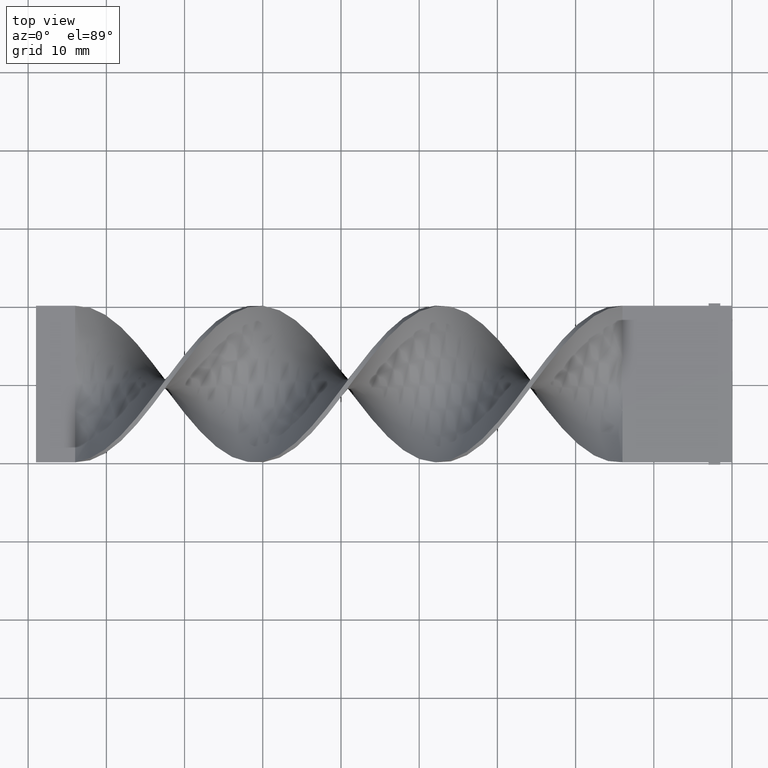
[diagram: clean part render]
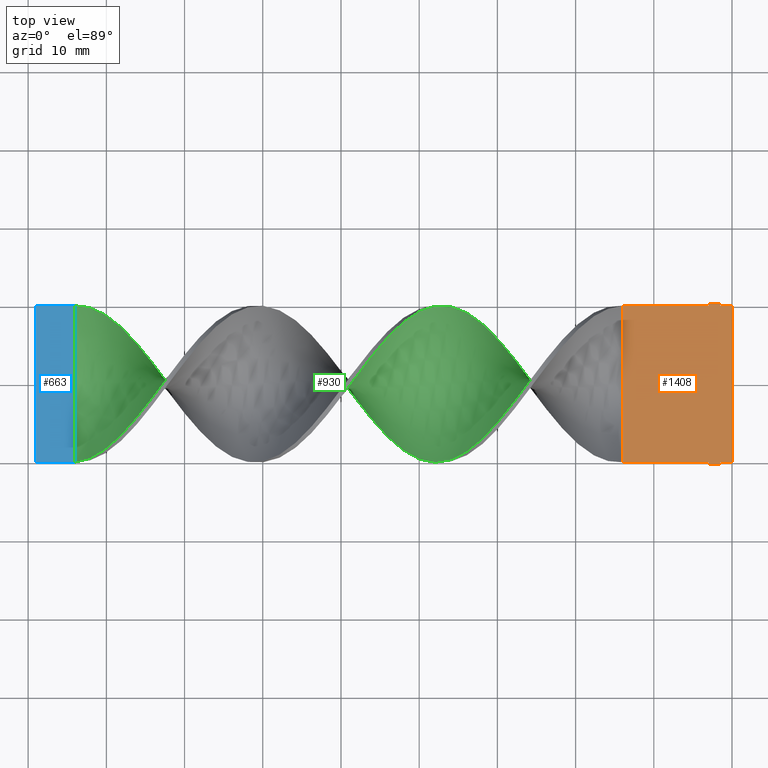
[diagram: same view with three faces highlighted in distinct colors, each labeled with its STEP entity id]
A machine part, top view with three faces highlighted in distinct colors.
Their STEP definitions:

[orange] entity #1408 — the highlighted planar face has unit normal (0, 0, 1).
#7 = EDGE_CURVE ( 'NONE', #125, #996, #1470, .T. ) ;
#10 = ORIENTED_EDGE ( 'NONE', *, *, #1263, .T. ) ;
#12 = DIRECTION ( 'NONE',  ( 0.000000000000000000, 0.000000000000000000, 1.000000000000000000 ) ) ;
#35 = LINE ( 'NONE', #1271, #46 ) ;
#46 = VECTOR ( 'NONE', #1280, 1000.000000000000000 ) ;
#49 = LINE ( 'NONE', #709, #1405 ) ;
#75 = VERTEX_POINT ( 'NONE', #1486 ) ;
#79 = EDGE_CURVE ( 'NONE', #125, #712, #339, .T. ) ;
#81 = FACE_OUTER_BOUND ( 'NONE', #1205, .T. ) ;
#84 = VERTEX_POINT ( 'NONE', #1091 ) ;
#125 = VERTEX_POINT ( 'NONE', #1222 ) ;
#155 = EDGE_CURVE ( 'NONE', #712, #1613, #610, .T. ) ;
#227 = VECTOR ( 'NONE', #600, 1000.000000000000000 ) ;
#232 = LINE ( 'NONE', #240, #576 ) ;
#240 = CARTESIAN_POINT ( 'NONE',  ( -2.999999999999995559, 10.30000000000000071, 0.5000000000000000000 ) ) ;
#246 = DIRECTION ( 'NONE',  ( 1.000000000000000000, 0.000000000000000000, -0.000000000000000000 ) ) ;
#249 = CARTESIAN_POINT ( 'NONE',  ( -2.449293598294706513E-15, 10.00000000000000000, 0.5000000000000000000 ) ) ;
#273 = VERTEX_POINT ( 'NONE', #1265 ) ;
#280 = VECTOR ( 'NONE', #612, 1000.000000000000000 ) ;
#285 = CARTESIAN_POINT ( 'NONE',  ( -2.999999999999993339, -10.00000000000000000, 0.5000000000000000000 ) ) ;
#287 = VERTEX_POINT ( 'NONE', #285 ) ;
#294 = ORIENTED_EDGE ( 'NONE', *, *, #985, .F. ) ;
#335 = CARTESIAN_POINT ( 'NONE',  ( -1.499999999999993339, -10.00000000000000000, 0.5000000000000000000 ) ) ;
#339 = LINE ( 'NONE', #864, #227 ) ;
#415 = ORIENTED_EDGE ( 'NONE', *, *, #1165, .T. ) ;
#438 = VECTOR ( 'NONE', #1103, 1000.000000000000000 ) ;
#461 = DIRECTION ( 'NONE',  ( -1.000000000000000000, 0.000000000000000000, 0.000000000000000000 ) ) ;
#491 = ORIENTED_EDGE ( 'NONE', *, *, #1365, .F. ) ;
#503 = ORIENTED_EDGE ( 'NONE', *, *, #155, .T. ) ;
#537 = ORIENTED_EDGE ( 'NONE', *, *, #1135, .F. ) ;
#545 = CARTESIAN_POINT ( 'NONE',  ( -1.499999999999995781, 10.00000000000000000, 0.5000000000000000000 ) ) ;
#549 = VECTOR ( 'NONE', #971, 1000.000000000000000 ) ;
#554 = CARTESIAN_POINT ( 'NONE',  ( -2.999999999999993339, -10.30000000000000071, 0.5000000000000000000 ) ) ;
#555 = ORIENTED_EDGE ( 'NONE', *, *, #1318, .F. ) ;
#563 = VERTEX_POINT ( 'NONE', #1347 ) ;
#576 = VECTOR ( 'NONE', #1469, 1000.000000000000000 ) ;
#586 = PLANE ( 'NONE',  #910 ) ;
#596 = DIRECTION ( 'NONE',  ( -1.000000000000000000, 0.000000000000000000, 0.000000000000000000 ) ) ;
#598 = VECTOR ( 'NONE', #461, 1000.000000000000000 ) ;
#600 = DIRECTION ( 'NONE',  ( -1.224646799147353207E-16, 1.000000000000000000, 0.000000000000000000 ) ) ;
#610 = LINE ( 'NONE', #249, #671 ) ;
#612 = DIRECTION ( 'NONE',  ( 8.673617379884035472E-17, -1.000000000000000000, 0.000000000000000000 ) ) ;
#620 = CARTESIAN_POINT ( 'NONE',  ( -13.99999999999999822, 9.999999999999998224, 0.5000000000000000000 ) ) ;
#632 = LINE ( 'NONE', #844, #549 ) ;
#643 = CARTESIAN_POINT ( 'NONE',  ( 0.000000000000000000, 0.000000000000000000, 0.5000000000000000000 ) ) ;
#653 = VECTOR ( 'NONE', #960, 1000.000000000000000 ) ;
#671 = VECTOR ( 'NONE', #1366, 1000.000000000000000 ) ;
#707 = VECTOR ( 'NONE', #1047, 1000.000000000000000 ) ;
#709 = CARTESIAN_POINT ( 'NONE',  ( -1.499999999999993117, -10.30000000000000071, 0.5000000000000000000 ) ) ;
#712 = VERTEX_POINT ( 'NONE', #720 ) ;
#718 = LINE ( 'NONE', #545, #653 ) ;
#720 = CARTESIAN_POINT ( 'NONE',  ( -2.449293598294706513E-15, 10.00000000000000000, 0.5000000000000000000 ) ) ;
#725 = CARTESIAN_POINT ( 'NONE',  ( -13.99999999999999822, 9.999999999999998224, 0.5000000000000000000 ) ) ;
#797 = EDGE_CURVE ( 'NONE', #928, #1038, #632, .T. ) ;
#807 = CARTESIAN_POINT ( 'NONE',  ( -1.499999999999995781, 10.00000000000000000, 0.5000000000000000000 ) ) ;
#827 = EDGE_CURVE ( 'NONE', #563, #928, #232, .T. ) ;
#844 = CARTESIAN_POINT ( 'NONE',  ( -2.999999999999995559, 10.00000000000000000, 0.5000000000000000000 ) ) ;
#864 = CARTESIAN_POINT ( 'NONE',  ( 0.000000000000000000, -10.00000000000000000, 0.5000000000000000000 ) ) ;
#874 = CARTESIAN_POINT ( 'NONE',  ( -2.999999999999993339, -10.00000000000000000, 0.5000000000000000000 ) ) ;
#910 = AXIS2_PLACEMENT_3D ( 'NONE', #643, #12, #246 ) ;
#928 = VERTEX_POINT ( 'NONE', #1247 ) ;
#939 = VECTOR ( 'NONE', #1360, 1000.000000000000000 ) ;
#959 = CARTESIAN_POINT ( 'NONE',  ( -1.499999999999993339, -10.00000000000000000, 0.5000000000000000000 ) ) ;
#960 = DIRECTION ( 'NONE',  ( 0.000000000000000000, 1.000000000000000000, 0.000000000000000000 ) ) ;
#969 = LINE ( 'NONE', #554, #707 ) ;
#971 = DIRECTION ( 'NONE',  ( -1.000000000000000000, -1.577021341797097067E-16, 0.000000000000000000 ) ) ;
#985 = EDGE_CURVE ( 'NONE', #996, #75, #1234, .T. ) ;
#996 = VERTEX_POINT ( 'NONE', #335 ) ;
#1037 = CARTESIAN_POINT ( 'NONE',  ( -1.499999999999995781, 10.30000000000000071, 0.5000000000000000000 ) ) ;
#1038 = VERTEX_POINT ( 'NONE', #725 ) ;
#1047 = DIRECTION ( 'NONE',  ( 0.000000000000000000, 1.000000000000000000, 0.000000000000000000 ) ) ;
#1091 = CARTESIAN_POINT ( 'NONE',  ( -2.999999999999993339, -10.30000000000000071, 0.5000000000000000000 ) ) ;
#1103 = DIRECTION ( 'NONE',  ( -1.000000000000000000, -1.577021341797097067E-16, 0.000000000000000000 ) ) ;
#1114 = ORIENTED_EDGE ( 'NONE', *, *, #797, .T. ) ;
#1135 = EDGE_CURVE ( 'NONE', #287, #273, #1488, .T. ) ;
#1151 = ORIENTED_EDGE ( 'NONE', *, *, #79, .T. ) ;
#1165 = EDGE_CURVE ( 'NONE', #1038, #273, #1583, .T. ) ;
#1205 = EDGE_LOOP ( 'NONE', ( #1294, #1151, #503, #10, #1346, #1564, #1114, #415, #537, #491, #555, #294 ) ) ;
#1222 = CARTESIAN_POINT ( 'NONE',  ( 0.000000000000000000, -10.00000000000000000, 0.5000000000000000000 ) ) ;
#1234 = LINE ( 'NONE', #959, #939 ) ;
#1247 = CARTESIAN_POINT ( 'NONE',  ( -2.999999999999995559, 10.00000000000000000, 0.5000000000000000000 ) ) ;
#1263 = EDGE_CURVE ( 'NONE', #1613, #1302, #718, .T. ) ;
#1265 = CARTESIAN_POINT ( 'NONE',  ( -13.99999999999999645, -10.00000000000000178, 0.5000000000000000000 ) ) ;
#1271 = CARTESIAN_POINT ( 'NONE',  ( -1.499999999999995781, 10.30000000000000071, 0.5000000000000000000 ) ) ;
#1280 = DIRECTION ( 'NONE',  ( -1.000000000000000000, 0.000000000000000000, 0.000000000000000000 ) ) ;
#1294 = ORIENTED_EDGE ( 'NONE', *, *, #7, .F. ) ;
#1302 = VERTEX_POINT ( 'NONE', #1037 ) ;
#1318 = EDGE_CURVE ( 'NONE', #75, #84, #49, .T. ) ;
#1346 = ORIENTED_EDGE ( 'NONE', *, *, #1523, .T. ) ;
#1347 = CARTESIAN_POINT ( 'NONE',  ( -2.999999999999995559, 10.30000000000000071, 0.5000000000000000000 ) ) ;
#1360 = DIRECTION ( 'NONE',  ( 7.228014483236698528E-16, -1.000000000000000000, 0.000000000000000000 ) ) ;
#1365 = EDGE_CURVE ( 'NONE', #84, #287, #969, .T. ) ;
#1366 = DIRECTION ( 'NONE',  ( -1.000000000000000000, 0.000000000000000000, 0.000000000000000000 ) ) ;
#1405 = VECTOR ( 'NONE', #596, 1000.000000000000000 ) ;
#1408 = ADVANCED_FACE ( 'NONE', ( #81 ), #586, .T. ) ;
#1460 = CARTESIAN_POINT ( 'NONE',  ( 0.000000000000000000, -10.00000000000000000, 0.5000000000000000000 ) ) ;
#1469 = DIRECTION ( 'NONE',  ( 0.000000000000000000, -1.000000000000000000, 0.000000000000000000 ) ) ;
#1470 = LINE ( 'NONE', #1460, #598 ) ;
#1486 = CARTESIAN_POINT ( 'NONE',  ( -1.499999999999993117, -10.30000000000000071, 0.5000000000000000000 ) ) ;
#1488 = LINE ( 'NONE', #874, #438 ) ;
#1523 = EDGE_CURVE ( 'NONE', #1302, #563, #35, .T. ) ;
#1564 = ORIENTED_EDGE ( 'NONE', *, *, #827, .T. ) ;
#1583 = LINE ( 'NONE', #620, #280 ) ;
#1613 = VERTEX_POINT ( 'NONE', #807 ) ;

[blue] entity #663 — the highlighted planar face has unit normal (0, -0, -1).
#31 = ORIENTED_EDGE ( 'NONE', *, *, #1186, .F. ) ;
#64 = VECTOR ( 'NONE', #138, 1000.000000000000000 ) ;
#110 = DIRECTION ( 'NONE',  ( 0.000000000000000000, 1.000000000000000000, -1.192622389734054877E-16 ) ) ;
#111 = CARTESIAN_POINT ( 'NONE',  ( -84.00000000000000000, 9.999999999999998224, 0.4999999999999988343 ) ) ;
#138 = DIRECTION ( 'NONE',  ( 1.000000000000000000, -0.000000000000000000, -0.000000000000000000 ) ) ;
#167 = EDGE_CURVE ( 'NONE', #590, #517, #505, .T. ) ;
#218 = CARTESIAN_POINT ( 'NONE',  ( -89.00000000000001421, -10.00000000000000178, 0.5000000000000012212 ) ) ;
#235 = VECTOR ( 'NONE', #345, 1000.000000000000000 ) ;
#257 = LINE ( 'NONE', #1013, #64 ) ;
#296 = EDGE_CURVE ( 'NONE', #703, #517, #257, .T. ) ;
#345 = DIRECTION ( 'NONE',  ( 1.000000000000000000, -0.000000000000000000, -0.000000000000000000 ) ) ;
#433 = EDGE_LOOP ( 'NONE', ( #1023, #1081, #31, #1372 ) ) ;
#490 = CARTESIAN_POINT ( 'NONE',  ( -89.00000000000001421, 9.999999999999998224, 0.4999999999999988343 ) ) ;
#505 = B_SPLINE_CURVE_WITH_KNOTS ( 'NONE', 3,
 ( #745, #1239, #1597, #111 ),
 .UNSPECIFIED., .F., .F.,
 ( 4, 4 ),
 ( 0.000000000000000000, 1.000000000000000000 ),
 .UNSPECIFIED. ) ;
#517 = VERTEX_POINT ( 'NONE', #884 ) ;
#541 = CARTESIAN_POINT ( 'NONE',  ( -89.00000000000001421, -10.00000000000000178, 0.5000000000000012212 ) ) ;
#590 = VERTEX_POINT ( 'NONE', #1614 ) ;
#599 = FACE_OUTER_BOUND ( 'NONE', #433, .T. ) ;
#663 = ADVANCED_FACE ( 'NONE', ( #599 ), #1107, .F. ) ;
#703 = VERTEX_POINT ( 'NONE', #490 ) ;
#744 = DIRECTION ( 'NONE',  ( 0.000000000000000000, -1.192622389734054877E-16, -1.000000000000000000 ) ) ;
#745 = CARTESIAN_POINT ( 'NONE',  ( -84.00000000000000000, -10.00000000000000178, 0.5000000000000012212 ) ) ;
#795 = AXIS2_PLACEMENT_3D ( 'NONE', #1089, #744, #110 ) ;
#834 = LINE ( 'NONE', #1210, #235 ) ;
#884 = CARTESIAN_POINT ( 'NONE',  ( -84.00000000000000000, 9.999999999999998224, 0.4999999999999988343 ) ) ;
#1003 = EDGE_CURVE ( 'NONE', #1528, #590, #834, .T. ) ;
#1013 = CARTESIAN_POINT ( 'NONE',  ( -89.00000000000001421, 9.999999999999998224, 0.4999999999999988343 ) ) ;
#1023 = ORIENTED_EDGE ( 'NONE', *, *, #167, .T. ) ;
#1081 = ORIENTED_EDGE ( 'NONE', *, *, #296, .F. ) ;
#1089 = CARTESIAN_POINT ( 'NONE',  ( -89.00000000000001421, -10.00000000000000178, 0.5000000000000012212 ) ) ;
#1107 = PLANE ( 'NONE',  #795 ) ;
#1186 = EDGE_CURVE ( 'NONE', #1528, #703, #1600, .T. ) ;
#1210 = CARTESIAN_POINT ( 'NONE',  ( -89.00000000000001421, -10.00000000000000178, 0.5000000000000012212 ) ) ;
#1239 = CARTESIAN_POINT ( 'NONE',  ( -84.00000000000000000, -3.333333333333335702, 0.5000000000000004441 ) ) ;
#1359 = VECTOR ( 'NONE', #1374, 1000.000000000000000 ) ;
#1372 = ORIENTED_EDGE ( 'NONE', *, *, #1003, .T. ) ;
#1374 = DIRECTION ( 'NONE',  ( 0.000000000000000000, 1.000000000000000000, -1.192622389734054877E-16 ) ) ;
#1528 = VERTEX_POINT ( 'NONE', #541 ) ;
#1597 = CARTESIAN_POINT ( 'NONE',  ( -84.00000000000000000, 3.333333333333332149, 0.4999999999999995559 ) ) ;
#1600 = LINE ( 'NONE', #218, #1359 ) ;
#1614 = CARTESIAN_POINT ( 'NONE',  ( -84.00000000000000000, -10.00000000000000178, 0.5000000000000012212 ) ) ;

[green] entity #930 — the highlighted face is a freeform B-spline surface patch.
#2 = CARTESIAN_POINT ( 'NONE',  ( -42.71794871794872250, -7.816668810831410852, -6.256971208322399391 ) ) ;
#3 = CARTESIAN_POINT ( 'NONE',  ( -52.58974358974359120, 4.235384428724042749, -9.153662347191259485 ) ) ;
#6 = CARTESIAN_POINT ( 'NONE',  ( -58.87179487179486870, 9.589760342116736780, -2.878627551588612388 ) ) ;
#8 = CARTESIAN_POINT ( 'NONE',  ( -23.87179487179487580, 2.899770140771673166, 9.660194033048927764 ) ) ;
#13 = CARTESIAN_POINT ( 'NONE',  ( -62.46153846153845990, 9.829076006404298127, 1.907685734162551494 ) ) ;
#20 = CARTESIAN_POINT ( 'NONE',  ( -55.28205128205128460, 7.153546152590608997, -7.005481956493506246 ) ) ;
#21 = CARTESIAN_POINT ( 'NONE',  ( -39.12820512820512420, -9.829076006404301680, -1.907685734162548385 ) ) ;
#23 = CARTESIAN_POINT ( 'NONE',  ( -59.76923076923076650, -10.06071099161113480, 0.7142198322226109841 ) ) ;
#28 = CARTESIAN_POINT ( 'NONE',  ( -28.35897435897435770, -3.078540749082648631, 9.527464870375414563 ) ) ;
#36 = CARTESIAN_POINT ( 'NONE',  ( -42.71794871794872250, 7.153546152590615215, 7.005481956493500029 ) ) ;
#37 = CARTESIAN_POINT ( 'NONE',  ( -57.07692307692307310, 8.622198670510210050, -5.089959733264296737 ) ) ;
#44 = CARTESIAN_POINT ( 'NONE',  ( -55.28205128205128460, -7.816668810831406411, 6.256971208322405609 ) ) ;
#47 = CARTESIAN_POINT ( 'NONE',  ( -82.20512820512820440, -9.589760342116740333, 2.878627551588606615 ) ) ;
#55 = CARTESIAN_POINT ( 'NONE',  ( -13.99999999999999822, -10.00000000000000178, -0.5000000000000000000 ) ) ;
#56 = CARTESIAN_POINT ( 'NONE',  ( -55.28205128205128460, 7.153546152590608997, -7.005481956493506246 ) ) ;
#62 = CARTESIAN_POINT ( 'NONE',  ( -65.15384615384614619, -8.004165665175818845, -6.136884195573979461 ) ) ;
#71 = CARTESIAN_POINT ( 'NONE',  ( -37.33333333333332860, 9.999999999999998224, 0.4999999999999988343 ) ) ;
#80 = CARTESIAN_POINT ( 'NONE',  ( -83.10256410256410220, 10.06071099161113125, -0.7142198322226098739 ) ) ;
#88 = CARTESIAN_POINT ( 'NONE',  ( -80.41025641025640880, 9.086921842553980611, -4.204503707611081609 ) ) ;
#95 = CARTESIAN_POINT ( 'NONE',  ( -27.46153846153846345, 2.899770140771671834, -9.660194033048927764 ) ) ;
#98 = CARTESIAN_POINT ( 'NONE',  ( -73.23076923076924061, 1.701721239602254521, -9.866820400852878592 ) ) ;
#105 = CARTESIAN_POINT ( 'NONE',  ( -44.51282051282051100, 5.269155534364730720, 8.513871032302141373 ) ) ;
#107 = CARTESIAN_POINT ( 'NONE',  ( -78.61538461538461320, 7.816668810831406411, -6.256971208322403832 ) ) ;
#111 = CARTESIAN_POINT ( 'NONE',  ( -84.00000000000000000, 9.999999999999998224, 0.4999999999999988343 ) ) ;
#117 = CARTESIAN_POINT ( 'NONE',  ( -21.17948717948717885, 6.092139400258386850, 7.945806285570984784 ) ) ;
#121 = CARTESIAN_POINT ( 'NONE',  ( -42.71794871794872250, 7.153546152590615215, 7.005481956493500029 ) ) ;
#128 = VECTOR ( 'NONE', #213, 1000.000000000000000 ) ;
#132 = CARTESIAN_POINT ( 'NONE',  ( -22.97435897435897090, 4.013556991768064464, 9.172859983332880773 ) ) ;
#133 = CARTESIAN_POINT ( 'NONE',  ( -16.69230769230769340, 9.597441021197466782, 3.101151636102497555 ) ) ;
#137 = CARTESIAN_POINT ( 'NONE',  ( -36.43589743589743790, -9.939289008388872304, 1.714219832222609874 ) ) ;
#142 = CARTESIAN_POINT ( 'NONE',  ( -71.43589743589743080, 1.701721239602258073, 9.866820400852878592 ) ) ;
#143 = CARTESIAN_POINT ( 'NONE',  ( -30.15384615384615330, -5.269155534364729832, 8.513871032302143149 ) ) ;
#146 = CARTESIAN_POINT ( 'NONE',  ( -57.97435897435897090, -9.597441021197468558, 3.101151636102501552 ) ) ;
#152 = CARTESIAN_POINT ( 'NONE',  ( -48.10256410256410220, -1.701721239602264069, -9.866820400852876816 ) ) ;
#153 = CARTESIAN_POINT ( 'NONE',  ( -35.53846153846153300, -9.589760342116740333, 2.878627551588606615 ) ) ;
#160 = CARTESIAN_POINT ( 'NONE',  ( -32.84615384615384670, -8.004165665175817068, 6.136884195573980350 ) ) ;
#161 = CARTESIAN_POINT ( 'NONE',  ( -57.97435897435897090, 9.240231675844611914, -4.043035270954605132 ) ) ;
#167 = EDGE_CURVE ( 'NONE', #590, #517, #505, .T. ) ;
#169 = CARTESIAN_POINT ( 'NONE',  ( -52.58974358974358410, -5.127343842764450876, 8.685525933616833782 ) ) ;
#172 = LINE ( 'NONE', #1417, #128 ) ;
#178 = CARTESIAN_POINT ( 'NONE',  ( -63.35897435897435770, -9.240231675844619019, -4.043035270954601579 ) ) ;
#188 = CARTESIAN_POINT ( 'NONE',  ( -83.10256410256410220, -9.939289008388872304, 1.714219832222609874 ) ) ;
#195 = CARTESIAN_POINT ( 'NONE',  ( -46.30769230769230660, 3.078540749082650407, 9.527464870375414563 ) ) ;
#196 = CARTESIAN_POINT ( 'NONE',  ( -72.33333333333332860, 0.5036723384328408715, 10.07344676865682942 ) ) ;
#203 = CARTESIAN_POINT ( 'NONE',  ( -31.94871794871794535, 7.816668810831406411, -6.256971208322403832 ) ) ;
#204 = CARTESIAN_POINT ( 'NONE',  ( -84.00000000000000000, 9.999999999999998224, 0.4999999999999988343 ) ) ;
#212 = CARTESIAN_POINT ( 'NONE',  ( -76.82051282051281760, 6.092139400258384185, -7.945806285570986560 ) ) ;
#213 = DIRECTION ( 'NONE',  ( 8.673617379884035472E-17, -1.000000000000000000, 0.000000000000000000 ) ) ;
#228 = CARTESIAN_POINT ( 'NONE',  ( -34.64102564102564230, 9.597441021197465005, -3.101151636102500220 ) ) ;
#230 = CARTESIAN_POINT ( 'NONE',  ( -74.12820512820512420, 2.899770140771672278, -9.660194033048927764 ) ) ;
#233 = VERTEX_POINT ( 'NONE', #264 ) ;
#236 = CARTESIAN_POINT ( 'NONE',  ( -38.23076923076922640, 9.939289008388868751, 1.714219832222602991 ) ) ;
#252 = CARTESIAN_POINT ( 'NONE',  ( -22.97435897435897090, -3.078540749082652184, -9.527464870375414563 ) ) ;
#256 = CARTESIAN_POINT ( 'NONE',  ( -35.53846153846153300, -9.589760342116740333, 2.878627551588606615 ) ) ;
#263 = CARTESIAN_POINT ( 'NONE',  ( -70.53846153846153300, 2.899770140771673166, 9.660194033048927764 ) ) ;
#264 = CARTESIAN_POINT ( 'NONE',  ( -13.99999999999999645, -10.00000000000000178, -0.5000000000000000000 ) ) ;
#269 = CARTESIAN_POINT ( 'NONE',  ( -60.66666666666666430, 9.999999999999998224, -0.5000000000000000000 ) ) ;
#270 = CARTESIAN_POINT ( 'NONE',  ( -48.10256410256410220, -1.701721239602264069, -9.866820400852876816 ) ) ;
#272 = CARTESIAN_POINT ( 'NONE',  ( -54.38461538461538680, -7.056934957752314830, 7.206086637525145555 ) ) ;
#275 = CARTESIAN_POINT ( 'NONE',  ( -75.92307692307693401, -4.235384428724051631, 9.153662347191257709 ) ) ;
#276 = CARTESIAN_POINT ( 'NONE',  ( -31.05128205128205465, -6.302926640005408920, 7.874079717413029478 ) ) ;
#284 = CARTESIAN_POINT ( 'NONE',  ( -53.48717948717948900, 5.269155534364727167, -8.513871032302144926 ) ) ;
#290 = CARTESIAN_POINT ( 'NONE',  ( -50.79487179487178850, -2.899770140771671390, 9.660194033048929541 ) ) ;
#291 = CARTESIAN_POINT ( 'NONE',  ( -66.05128205128204399, 7.816668810831408187, 6.256971208322401168 ) ) ;
#293 = CARTESIAN_POINT ( 'NONE',  ( -78.61538461538461320, 7.816668810831406411, -6.256971208322403832 ) ) ;
#299 = CARTESIAN_POINT ( 'NONE',  ( -60.66666666666666430, -10.00000000000000178, -0.5000000000000000000 ) ) ;
#300 = CARTESIAN_POINT ( 'NONE',  ( -78.61538461538461320, -7.153546152590612550, 7.005481956493504470 ) ) ;
#307 = CARTESIAN_POINT ( 'NONE',  ( -36.43589743589743790, 10.06071099161113125, -0.7142198322226098739 ) ) ;
#309 = CARTESIAN_POINT ( 'NONE',  ( -56.17948717948717530, 8.004165665175813515, -6.136884195573983014 ) ) ;
#315 = CARTESIAN_POINT ( 'NONE',  ( -16.69230769230769695, -9.240231675844619019, -4.043035270954601579 ) ) ;
#316 = EDGE_CURVE ( 'NONE', #661, #590, #321, .T. ) ;
#317 = CARTESIAN_POINT ( 'NONE',  ( -75.92307692307691980, -4.235384428724050743, 9.153662347191257709 ) ) ;
#321 =( BOUNDED_CURVE ( )  B_SPLINE_CURVE ( 2, ( #645, #508, #1149, #133, #1500, #1512, #1252, #1127, #1004, #639, #893, #8, #782, #513, #1027, #1282, #1526, #521, #143, #276, #1008, #1380, #391, #1020, #153, #774, #651, #1274, #21, #1517, #1505, #404, #886, #1387, #1392, #1141, #396, #634, #270, #767, #900, #658, #1122, #3, #925, #411, #56, #309, #37, #161, #1054, #934, #789, #560, #1317, #1158, #1432, #1543, #291, #1552, #421, #943, #1176, #579, #809, #196, #1071, #543, #1423, #317, #816, #1192, #300, #676, #431, #1570, #47, #1309, #449 ),
 .UNSPECIFIED., .F., .T. ) 
 B_SPLINE_CURVE_WITH_KNOTS ( ( 3, 2, 2, 2, 2, 2, 2, 2, 2, 2, 2, 2, 2, 2, 2, 2, 2, 2, 2, 2, 2, 2, 2, 2, 2, 2, 2, 2, 2, 2, 2, 2, 2, 2, 2, 2, 2, 2, 2, 3 ),
 ( 0.000000000000000000, 0.01923076923076923184, 0.03846153846153846367, 0.05769230769230768857, 0.07692307692307692735, 0.09615384615384615918, 0.1153846153846153771, 0.1346153846153846090, 0.1538461538461538547, 0.1730769230769230449, 0.1923076923076923184, 0.2115384615384615363, 0.2307692307692307543, 0.2500000000000000000, 0.2692307692307692180, 0.2884615384615384359, 0.3076923076923077094, 0.3269230769230769273, 0.3461538461538460898, 0.3653846153846153633, 0.3846153846153846367, 0.4038461538461539102, 0.4230769230769230727, 0.4423076923076922906, 0.4615384615384615086, 0.4807692307692307820, 0.5000000000000000000, 0.5192307692307692735, 0.5384615384615384359, 0.5576923076923077094, 0.5769230769230768718, 0.5961538461538461453, 0.6153846153846154188, 0.6346153846153845812, 0.6538461538461538547, 0.6730769230769230171, 0.6923076923076921796, 0.7115384615384615641, 0.7307692307692307265, 0.7500000000000000000 ),
 .UNSPECIFIED. ) 
 CURVE ( )  GEOMETRIC_REPRESENTATION_ITEM ( )  RATIONAL_B_SPLINE_CURVE ( ( 1.000000000000000000, 0.9927088740980539727, 1.000000000000000000, 0.9927088740980539727, 1.000000000000000000, 0.9927088740980539727, 1.000000000000000000, 0.9927088740980539727, 1.000000000000000000, 0.9927088740980539727, 1.000000000000000000, 0.9927088740980539727, 1.000000000000000000, 0.9927088740980539727, 1.000000000000000000, 0.9927088740980539727, 1.000000000000000000, 0.9927088740980539727, 1.000000000000000000, 0.9927088740980539727, 1.000000000000000000, 0.9927088740980539727, 1.000000000000000000, 0.9927088740980539727, 1.000000000000000000, 0.9927088740980539727, 1.000000000000000000, 0.9927088740980539727, 1.000000000000000000, 0.9927088740980539727, 1.000000000000000000, 0.9927088740980539727, 1.000000000000000000, 0.9927088740980539727, 1.000000000000000000, 0.9927088740980539727, 1.000000000000000000, 0.9927088740980539727, 1.000000000000000000, 0.9927088740980539727, 1.000000000000000000, 0.9927088740980539727, 1.000000000000000000, 0.9927088740980539727, 1.000000000000000000, 0.9927088740980539727, 1.000000000000000000, 0.9927088740980539727, 1.000000000000000000, 0.9927088740980539727, 1.000000000000000000, 0.9927088740980539727, 1.000000000000000000, 0.9927088740980539727, 1.000000000000000000, 0.9927088740980539727, 1.000000000000000000, 0.9927088740980539727, 1.000000000000000000, 0.9927088740980539727, 1.000000000000000000, 0.9927088740980539727, 1.000000000000000000, 0.9927088740980539727, 1.000000000000000000, 0.9927088740980539727, 1.000000000000000000, 0.9927088740980539727, 1.000000000000000000, 0.9927088740980539727, 1.000000000000000000, 0.9927088740980539727, 1.000000000000000000, 0.9927088740980539727, 1.000000000000000000, 0.9927088740980539727, 1.000000000000000000, 0.9927088740980539727, 1.000000000000000000 ) ) 
 REPRESENTATION_ITEM ( '' )  );
#325 = CARTESIAN_POINT ( 'NONE',  ( -80.41025641025640880, -8.622198670510215379, 5.089959733264292296 ) ) ;
#326 = CARTESIAN_POINT ( 'NONE',  ( -75.92307692307691980, 5.127343842764453541, -8.685525933616832006 ) ) ;
#342 = CARTESIAN_POINT ( 'NONE',  ( -21.17948717948717885, -5.269155534364732496, -8.513871032302141373 ) ) ;
#350 = CARTESIAN_POINT ( 'NONE',  ( -39.12820512820512420, 9.589760342116742109, 2.878627551588600397 ) ) ;
#359 = CARTESIAN_POINT ( 'NONE',  ( -24.76923076923076650, -0.7090123655042065431, -9.987357081108200418 ) ) ;
#363 = CARTESIAN_POINT ( 'NONE',  ( -18.48717948717948545, 8.576402663910497992, 5.307855779119662110 ) ) ;
#367 = CARTESIAN_POINT ( 'NONE',  ( -40.92307692307691980, 8.622198670510211826, 5.089959733264289632 ) ) ;
#377 = CARTESIAN_POINT ( 'NONE',  ( -57.97435897435897090, 9.240231675844613690, -4.043035270954606020 ) ) ;
#383 = CARTESIAN_POINT ( 'NONE',  ( -67.84615384615385381, 6.092139400258386850, 7.945806285570984784 ) ) ;
#390 = CARTESIAN_POINT ( 'NONE',  ( -47.20512820512820440, -2.899770140771674942, -9.660194033048927764 ) ) ;
#391 = CARTESIAN_POINT ( 'NONE',  ( -33.74358974358974450, -8.622198670510215379, 5.089959733264292296 ) ) ;
#395 = CARTESIAN_POINT ( 'NONE',  ( -74.12820512820512420, -1.921697069441248962, 9.901267393559574970 ) ) ;
#396 = CARTESIAN_POINT ( 'NONE',  ( -46.30769230769230660, -4.013556991768067128, -9.172859983332880773 ) ) ;
#398 = CARTESIAN_POINT ( 'NONE',  ( -65.15384615384614619, -8.004165665175818845, -6.136884195573979461 ) ) ;
#403 = CARTESIAN_POINT ( 'NONE',  ( -29.25641025641025905, -4.235384428724051631, 9.153662347191257709 ) ) ;
#404 = CARTESIAN_POINT ( 'NONE',  ( -41.82051282051281760, -8.576402663910501545, -5.307855779119661221 ) ) ;
#406 = CARTESIAN_POINT ( 'NONE',  ( -66.05128205128204399, -7.153546152590615215, -7.005481956493501805 ) ) ;
#410 = CARTESIAN_POINT ( 'NONE',  ( -34.64102564102564230, 9.597441021197465005, -3.101151636102500664 ) ) ;
#411 = CARTESIAN_POINT ( 'NONE',  ( -54.38461538461538680, 6.302926640005403591, -7.874079717413033030 ) ) ;
#414 = CARTESIAN_POINT ( 'NONE',  ( -70.53846153846153300, -1.921697069441250516, -9.901267393559574970 ) ) ;
#420 = CARTESIAN_POINT ( 'NONE',  ( -59.76923076923077360, -10.06071099161113480, 0.7142198322226109841 ) ) ;
#421 = CARTESIAN_POINT ( 'NONE',  ( -67.84615384615385381, 6.092139400258386850, 7.945806285570984784 ) ) ;
#423 =( BOUNDED_SURFACE ( )  B_SPLINE_SURFACE ( 1, 2, ( 
 ( #1458, #482, #735, #616, #1485, #363, #1363, #1236, #117, #1257, #132, #1012, #1262, #1251, #644, #1524, #28, #403, #534, #1281, #1404, #160, #520, #1379, #256, #137, #1397, #879, #773, #1140, #1511, #638, #2, #507, #1002, #756, #1272, #390, #152, #1386, #762, #1126, #1132, #781, #284, #892, #20, #665, #1499, #377, #6, #1391, #269, #512, #13, #1007, #1504, #526, #1019, #766, #383, #1026, #885, #263, #142, #650, #1516, #395, #899, #275, #657, #1148, #906, #577, #325, #448, #684, #188, #815 ),
 ( #55, #1561, #700, #315, #693, #1316, #569, #439, #1531, #949, #924, #1166, #1431, #1183, #1062, #1447, #551, #1414, #942, #788, #203, #1191, #823, #410, #1440, #307, #71, #916, #933, #1070, #1175, #1327, #36, #1569, #1551, #1157, #195, #542, #559, #1033, #808, #290, #1289, #169, #1422, #675, #44, #1044, #798, #1542, #1307, #420, #299, #1053, #1299, #178, #430, #62, #978, #455, #1201, #861, #1350, #1105, #733, #717, #851, #230, #479, #604, #212, #1226, #107, #1455, #88, #1603, #742, #80, #1336 ) ),
 .UNSPECIFIED., .F., .F., .F. ) 
 B_SPLINE_SURFACE_WITH_KNOTS ( ( 2, 2 ),
 ( 3, 2, 2, 2, 2, 2, 2, 2, 2, 2, 2, 2, 2, 2, 2, 2, 2, 2, 2, 2, 2, 2, 2, 2, 2, 2, 2, 2, 2, 2, 2, 2, 2, 2, 2, 2, 2, 2, 2, 3 ),
 ( 0.000000000000000000, 1.000000000000000000 ),
 ( 0.000000000000000000, 0.01923076923076923184, 0.03846153846153846367, 0.05769230769230769551, 0.07692307692307692735, 0.09615384615384615918, 0.1153846153846153910, 0.1346153846153846090, 0.1538461538461538547, 0.1730769230769230727, 0.1923076923076923184, 0.2115384615384615363, 0.2307692307692307820, 0.2500000000000000000, 0.2692307692307692180, 0.2884615384615384359, 0.3076923076923077094, 0.3269230769230769273, 0.3461538461538461453, 0.3653846153846153633, 0.3846153846153846367, 0.4038461538461538547, 0.4230769230769230727, 0.4423076923076922906, 0.4615384615384615641, 0.4807692307692307820, 0.5000000000000000000, 0.5192307692307692735, 0.5384615384615384359, 0.5576923076923077094, 0.5769230769230768718, 0.5961538461538461453, 0.6153846153846154188, 0.6346153846153845812, 0.6538461538461538547, 0.6730769230769231282, 0.6923076923076922906, 0.7115384615384615641, 0.7307692307692307265, 0.7500000000000000000 ),
 .UNSPECIFIED. ) 
 GEOMETRIC_REPRESENTATION_ITEM ( )  RATIONAL_B_SPLINE_SURFACE ( (
 ( 1.000000000000000000, 0.9927088740980539727, 1.000000000000000000, 0.9927088740980539727, 1.000000000000000000, 0.9927088740980539727, 1.000000000000000000, 0.9927088740980539727, 1.000000000000000000, 0.9927088740980539727, 1.000000000000000000, 0.9927088740980539727, 1.000000000000000000, 0.9927088740980539727, 1.000000000000000000, 0.9927088740980539727, 1.000000000000000000, 0.9927088740980539727, 1.000000000000000000, 0.9927088740980539727, 1.000000000000000000, 0.9927088740980539727, 1.000000000000000000, 0.9927088740980539727, 1.000000000000000000, 0.9927088740980539727, 1.000000000000000000, 0.9927088740980539727, 1.000000000000000000, 0.9927088740980539727, 1.000000000000000000, 0.9927088740980539727, 1.000000000000000000, 0.9927088740980539727, 1.000000000000000000, 0.9927088740980539727, 1.000000000000000000, 0.9927088740980539727, 1.000000000000000000, 0.9927088740980539727, 1.000000000000000000, 0.9927088740980539727, 1.000000000000000000, 0.9927088740980539727, 1.000000000000000000, 0.9927088740980539727, 1.000000000000000000, 0.9927088740980539727, 1.000000000000000000, 0.9927088740980539727, 1.000000000000000000, 0.9927088740980539727, 1.000000000000000000, 0.9927088740980539727, 1.000000000000000000, 0.9927088740980539727, 1.000000000000000000, 0.9927088740980539727, 1.000000000000000000, 0.9927088740980539727, 1.000000000000000000, 0.9927088740980539727, 1.000000000000000000, 0.9927088740980539727, 1.000000000000000000, 0.9927088740980539727, 1.000000000000000000, 0.9927088740980539727, 1.000000000000000000, 0.9927088740980539727, 1.000000000000000000, 0.9927088740980539727, 1.000000000000000000, 0.9927088740980539727, 1.000000000000000000, 0.9927088740980539727, 1.000000000000000000, 0.9927088740980539727, 1.000000000000000000),
 ( 1.000000000000000000, 0.9927088740980539727, 1.000000000000000000, 0.9927088740980539727, 1.000000000000000000, 0.9927088740980539727, 1.000000000000000000, 0.9927088740980539727, 1.000000000000000000, 0.9927088740980539727, 1.000000000000000000, 0.9927088740980539727, 1.000000000000000000, 0.9927088740980539727, 1.000000000000000000, 0.9927088740980539727, 1.000000000000000000, 0.9927088740980539727, 1.000000000000000000, 0.9927088740980539727, 1.000000000000000000, 0.9927088740980539727, 1.000000000000000000, 0.9927088740980539727, 1.000000000000000000, 0.9927088740980539727, 1.000000000000000000, 0.9927088740980539727, 1.000000000000000000, 0.9927088740980539727, 1.000000000000000000, 0.9927088740980539727, 1.000000000000000000, 0.9927088740980539727, 1.000000000000000000, 0.9927088740980539727, 1.000000000000000000, 0.9927088740980539727, 1.000000000000000000, 0.9927088740980539727, 1.000000000000000000, 0.9927088740980539727, 1.000000000000000000, 0.9927088740980539727, 1.000000000000000000, 0.9927088740980539727, 1.000000000000000000, 0.9927088740980539727, 1.000000000000000000, 0.9927088740980539727, 1.000000000000000000, 0.9927088740980539727, 1.000000000000000000, 0.9927088740980539727, 1.000000000000000000, 0.9927088740980539727, 1.000000000000000000, 0.9927088740980539727, 1.000000000000000000, 0.9927088740980539727, 1.000000000000000000, 0.9927088740980539727, 1.000000000000000000, 0.9927088740980539727, 1.000000000000000000, 0.9927088740980539727, 1.000000000000000000, 0.9927088740980539727, 1.000000000000000000, 0.9927088740980539727, 1.000000000000000000, 0.9927088740980539727, 1.000000000000000000, 0.9927088740980539727, 1.000000000000000000, 0.9927088740980539727, 1.000000000000000000, 0.9927088740980539727, 1.000000000000000000) ) ) 
 REPRESENTATION_ITEM ( '' )  SURFACE ( )  );
#430 = CARTESIAN_POINT ( 'NONE',  ( -64.25641025641024839, -8.622198670510215379, -5.089959733264290520 ) ) ;
#431 = CARTESIAN_POINT ( 'NONE',  ( -80.41025641025640880, -8.622198670510215379, 5.089959733264292296 ) ) ;
#439 = CARTESIAN_POINT ( 'NONE',  ( -20.28205128205128460, -6.302926640005413361, -7.874079717413027701 ) ) ;
#448 = CARTESIAN_POINT ( 'NONE',  ( -81.30769230769233502, -9.240231675844617243, 4.043035270954605132 ) ) ;
#449 = CARTESIAN_POINT ( 'NONE',  ( -84.00000000000000000, -10.00000000000000178, 0.5000000000000012212 ) ) ;
#455 = CARTESIAN_POINT ( 'NONE',  ( -66.94871794871794179, -6.302926640005413361, -7.874079717413027701 ) ) ;
#465 = CARTESIAN_POINT ( 'NONE',  ( -14.89743589743589602, -9.939289008388872304, -1.714219832222605433 ) ) ;
#468 = CARTESIAN_POINT ( 'NONE',  ( -77.71794871794874382, 7.056934957752318383, -7.206086637525142891 ) ) ;
#476 = CARTESIAN_POINT ( 'NONE',  ( -32.84615384615384670, 8.576402663910496216, -5.307855779119662998 ) ) ;
#479 = CARTESIAN_POINT ( 'NONE',  ( -75.02564102564102200, 4.013556991768060911, -9.172859983332880773 ) ) ;
#480 = CARTESIAN_POINT ( 'NONE',  ( -74.12820512820510999, 2.899770140771671834, -9.660194033048927764 ) ) ;
#482 = CARTESIAN_POINT ( 'NONE',  ( -14.89743589743589602, 10.06071099161113125, 0.7142198322226053220 ) ) ;
#497 = FACE_OUTER_BOUND ( 'NONE', #1048, .T. ) ;
#502 = CARTESIAN_POINT ( 'NONE',  ( -48.10256410256410220, 0.7090123655042074313, 9.987357081108202195 ) ) ;
#505 = B_SPLINE_CURVE_WITH_KNOTS ( 'NONE', 3,
 ( #745, #1239, #1597, #111 ),
 .UNSPECIFIED., .F., .F.,
 ( 4, 4 ),
 ( 0.000000000000000000, 1.000000000000000000 ),
 .UNSPECIFIED. ) ;
#507 = CARTESIAN_POINT ( 'NONE',  ( -43.61538461538461320, -7.056934957752322823, -7.206086637525138450 ) ) ;
#508 = CARTESIAN_POINT ( 'NONE',  ( -14.89743589743589602, 10.06071099161113125, 0.7142198322226054330 ) ) ;
#510 = CARTESIAN_POINT ( 'NONE',  ( -57.07692307692307310, -9.086921842553982387, 4.204503707611086938 ) ) ;
#512 = CARTESIAN_POINT ( 'NONE',  ( -61.56410256410256920, 10.06071099161113125, 0.7142198322226053220 ) ) ;
#513 = CARTESIAN_POINT ( 'NONE',  ( -25.66666666666666785, 0.5036723384328408715, 10.07344676865682942 ) ) ;
#516 = CARTESIAN_POINT ( 'NONE',  ( -52.58974358974359120, -5.127343842764450876, 8.685525933616833782 ) ) ;
#517 = VERTEX_POINT ( 'NONE', #884 ) ;
#520 = CARTESIAN_POINT ( 'NONE',  ( -33.74358974358974450, -8.622198670510215379, 5.089959733264292296 ) ) ;
#521 = CARTESIAN_POINT ( 'NONE',  ( -29.25641025641025905, -4.235384428724050743, 9.153662347191257709 ) ) ;
#526 = CARTESIAN_POINT ( 'NONE',  ( -65.15384615384614619, 8.576402663910497992, 5.307855779119662110 ) ) ;
#529 = CARTESIAN_POINT ( 'NONE',  ( -61.56410256410256920, -9.939289008388872304, -1.714219832222605433 ) ) ;
#534 = CARTESIAN_POINT ( 'NONE',  ( -30.15384615384615330, -5.269155534364729832, 8.513871032302143149 ) ) ;
#542 = CARTESIAN_POINT ( 'NONE',  ( -47.20512820512820440, 1.921697069441246963, 9.901267393559574970 ) ) ;
#543 = CARTESIAN_POINT ( 'NONE',  ( -74.12820512820510999, -1.921697069441249184, 9.901267393559574970 ) ) ;
#546 = ORIENTED_EDGE ( 'NONE', *, *, #1287, .T. ) ;
#551 = CARTESIAN_POINT ( 'NONE',  ( -28.35897435897435770, 4.013556991768060911, -9.172859983332880773 ) ) ;
#559 = CARTESIAN_POINT ( 'NONE',  ( -48.10256410256410220, 0.7090123655042074313, 9.987357081108202195 ) ) ;
#560 = CARTESIAN_POINT ( 'NONE',  ( -61.56410256410256920, 10.06071099161113125, 0.7142198322226054330 ) ) ;
#569 = CARTESIAN_POINT ( 'NONE',  ( -19.38461538461538325, -7.153546152590615215, -7.005481956493501805 ) ) ;
#577 = CARTESIAN_POINT ( 'NONE',  ( -79.51282051282051100, -8.004165665175817068, 6.136884195573980350 ) ) ;
#579 = CARTESIAN_POINT ( 'NONE',  ( -70.53846153846153300, 2.899770140771673166, 9.660194033048927764 ) ) ;
#590 = VERTEX_POINT ( 'NONE', #1614 ) ;
#602 = CARTESIAN_POINT ( 'NONE',  ( -28.35897435897435770, 4.013556991768060911, -9.172859983332880773 ) ) ;
#604 = CARTESIAN_POINT ( 'NONE',  ( -75.92307692307693401, 5.127343842764453541, -8.685525933616832006 ) ) ;
#605 = CARTESIAN_POINT ( 'NONE',  ( -75.02564102564102200, 4.013556991768060911, -9.172859983332880773 ) ) ;
#616 = CARTESIAN_POINT ( 'NONE',  ( -16.69230769230769695, 9.597441021197466782, 3.101151636102497555 ) ) ;
#624 =( BOUNDED_CURVE ( )  B_SPLINE_CURVE ( 2, ( #1084, #465, #966, #1368, #1480, #747, #1472, #848, #342, #731, #252, #1463, #359, #1110, #1216, #95, #602, #1094, #859, #1357, #1591, #476, #1609, #228, #1233, #1116, #976, #236, #350, #1348, #367, #740, #121, #1224, #105, #992, #628, #1615, #502, #999, #1496, #895, #1394, #516, #1507, #272, #1029, #769, #510, #146, #1144, #23, #660, #529, #1022, #1519, #1410, #398, #406, #911, #1211, #919, #1078, #414, #1098, #791, #98, #480, #605, #326, #1456, #468, #293, #979, #1475, #1578, #1535, #1160, #204 ),
 .UNSPECIFIED., .F., .T. ) 
 B_SPLINE_CURVE_WITH_KNOTS ( ( 3, 2, 2, 2, 2, 2, 2, 2, 2, 2, 2, 2, 2, 2, 2, 2, 2, 2, 2, 2, 2, 2, 2, 2, 2, 2, 2, 2, 2, 2, 2, 2, 2, 2, 2, 2, 2, 2, 2, 3 ),
 ( 0.000000000000000000, 0.01923076923076923184, 0.03846153846153846367, 0.05769230769230768857, 0.07692307692307692735, 0.09615384615384615918, 0.1153846153846153771, 0.1346153846153846090, 0.1538461538461538547, 0.1730769230769230449, 0.1923076923076923184, 0.2115384615384615363, 0.2307692307692307543, 0.2500000000000000000, 0.2692307692307692180, 0.2884615384615384359, 0.3076923076923077094, 0.3269230769230769273, 0.3461538461538460898, 0.3653846153846153633, 0.3846153846153846367, 0.4038461538461539102, 0.4230769230769230727, 0.4423076923076922906, 0.4615384615384615086, 0.4807692307692307820, 0.5000000000000000000, 0.5192307692307692735, 0.5384615384615384359, 0.5576923076923077094, 0.5769230769230768718, 0.5961538461538461453, 0.6153846153846154188, 0.6346153846153845812, 0.6538461538461538547, 0.6730769230769230171, 0.6923076923076921796, 0.7115384615384615641, 0.7307692307692307265, 0.7500000000000000000 ),
 .UNSPECIFIED. ) 
 CURVE ( )  GEOMETRIC_REPRESENTATION_ITEM ( )  RATIONAL_B_SPLINE_CURVE ( ( 1.000000000000000000, 0.9927088740980539727, 1.000000000000000000, 0.9927088740980539727, 1.000000000000000000, 0.9927088740980539727, 1.000000000000000000, 0.9927088740980539727, 1.000000000000000000, 0.9927088740980539727, 1.000000000000000000, 0.9927088740980539727, 1.000000000000000000, 0.9927088740980539727, 1.000000000000000000, 0.9927088740980539727, 1.000000000000000000, 0.9927088740980539727, 1.000000000000000000, 0.9927088740980539727, 1.000000000000000000, 0.9927088740980539727, 1.000000000000000000, 0.9927088740980539727, 1.000000000000000000, 0.9927088740980539727, 1.000000000000000000, 0.9927088740980539727, 1.000000000000000000, 0.9927088740980539727, 1.000000000000000000, 0.9927088740980539727, 1.000000000000000000, 0.9927088740980539727, 1.000000000000000000, 0.9927088740980539727, 1.000000000000000000, 0.9927088740980539727, 1.000000000000000000, 0.9927088740980539727, 1.000000000000000000, 0.9927088740980539727, 1.000000000000000000, 0.9927088740980539727, 1.000000000000000000, 0.9927088740980539727, 1.000000000000000000, 0.9927088740980539727, 1.000000000000000000, 0.9927088740980539727, 1.000000000000000000, 0.9927088740980539727, 1.000000000000000000, 0.9927088740980539727, 1.000000000000000000, 0.9927088740980539727, 1.000000000000000000, 0.9927088740980539727, 1.000000000000000000, 0.9927088740980539727, 1.000000000000000000, 0.9927088740980539727, 1.000000000000000000, 0.9927088740980539727, 1.000000000000000000, 0.9927088740980539727, 1.000000000000000000, 0.9927088740980539727, 1.000000000000000000, 0.9927088740980539727, 1.000000000000000000, 0.9927088740980539727, 1.000000000000000000, 0.9927088740980539727, 1.000000000000000000, 0.9927088740980539727, 1.000000000000000000, 0.9927088740980539727, 1.000000000000000000 ) ) 
 REPRESENTATION_ITEM ( '' )  );
#628 = CARTESIAN_POINT ( 'NONE',  ( -46.30769230769230660, 3.078540749082650407, 9.527464870375414563 ) ) ;
#634 = CARTESIAN_POINT ( 'NONE',  ( -47.20512820512820440, -2.899770140771674942, -9.660194033048927764 ) ) ;
#638 = CARTESIAN_POINT ( 'NONE',  ( -41.82051282051281760, -8.576402663910501545, -5.307855779119661221 ) ) ;
#639 = CARTESIAN_POINT ( 'NONE',  ( -22.07692307692308020, 5.127343842764455317, 8.685525933616832006 ) ) ;
#644 = CARTESIAN_POINT ( 'NONE',  ( -26.56410256410256210, -0.7090123655042029904, 9.987357081108200418 ) ) ;
#645 = CARTESIAN_POINT ( 'NONE',  ( -13.99999999999999822, 9.999999999999998224, -0.5000000000000000000 ) ) ;
#650 = CARTESIAN_POINT ( 'NONE',  ( -72.33333333333332860, 0.5036723384328407604, 10.07344676865682764 ) ) ;
#651 = CARTESIAN_POINT ( 'NONE',  ( -37.33333333333332860, -10.00000000000000178, 0.5000000000000012212 ) ) ;
#657 = CARTESIAN_POINT ( 'NONE',  ( -76.82051282051281760, -5.269155534364729832, 8.513871032302143149 ) ) ;
#658 = CARTESIAN_POINT ( 'NONE',  ( -50.79487179487178850, 1.921697069441243189, -9.901267393559576746 ) ) ;
#660 = CARTESIAN_POINT ( 'NONE',  ( -60.66666666666666430, -10.00000000000000178, -0.5000000000000000000 ) ) ;
#661 = VERTEX_POINT ( 'NONE', #1477 ) ;
#665 = CARTESIAN_POINT ( 'NONE',  ( -56.17948717948717530, 8.004165665175813515, -6.136884195573982126 ) ) ;
#675 = CARTESIAN_POINT ( 'NONE',  ( -54.38461538461538680, -7.056934957752315718, 7.206086637525145555 ) ) ;
#676 = CARTESIAN_POINT ( 'NONE',  ( -79.51282051282051100, -8.004165665175817068, 6.136884195573980350 ) ) ;
#684 = CARTESIAN_POINT ( 'NONE',  ( -82.20512820512820440, -9.589760342116740333, 2.878627551588606615 ) ) ;
#693 = CARTESIAN_POINT ( 'NONE',  ( -17.58974358974358765, -8.622198670510215379, -5.089959733264290520 ) ) ;
#700 = CARTESIAN_POINT ( 'NONE',  ( -15.79487179487179205, -9.589760342116742109, -2.878627551588603062 ) ) ;
#717 = CARTESIAN_POINT ( 'NONE',  ( -72.33333333333332860, 0.5036723384328397612, -10.07344676865682764 ) ) ;
#731 = CARTESIAN_POINT ( 'NONE',  ( -22.07692307692308020, -4.235384428724051631, -9.153662347191257709 ) ) ;
#733 = CARTESIAN_POINT ( 'NONE',  ( -71.43589743589743080, -0.7090123655042065431, -9.987357081108200418 ) ) ;
#735 = CARTESIAN_POINT ( 'NONE',  ( -15.79487179487179205, 9.829076006404298127, 1.907685734162551494 ) ) ;
#740 = CARTESIAN_POINT ( 'NONE',  ( -41.82051282051281760, 8.004165665175815292, 6.136884195573978573 ) ) ;
#742 = CARTESIAN_POINT ( 'NONE',  ( -82.20512820512820440, 9.829076006404296351, -1.907685734162555047 ) ) ;
#745 = CARTESIAN_POINT ( 'NONE',  ( -84.00000000000000000, -10.00000000000000178, 0.5000000000000012212 ) ) ;
#747 = CARTESIAN_POINT ( 'NONE',  ( -18.48717948717948545, -8.004165665175818845, -6.136884195573979461 ) ) ;
#756 = CARTESIAN_POINT ( 'NONE',  ( -45.41025641025640880, -5.127343842764459758, -8.685525933616828453 ) ) ;
#762 = CARTESIAN_POINT ( 'NONE',  ( -49.89743589743589069, 0.7090123655041949968, -9.987357081108202195 ) ) ;
#766 = CARTESIAN_POINT ( 'NONE',  ( -66.94871794871794179, 7.056934957752320159, 7.206086637525141114 ) ) ;
#767 = CARTESIAN_POINT ( 'NONE',  ( -49.00000000000000000, -0.5036723384328445352, -10.07344676865682942 ) ) ;
#769 = CARTESIAN_POINT ( 'NONE',  ( -56.17948717948717530, -8.576402663910499768, 5.307855779119664774 ) ) ;
#773 = CARTESIAN_POINT ( 'NONE',  ( -39.12820512820512420, -9.829076006404301680, -1.907685734162548385 ) ) ;
#774 = CARTESIAN_POINT ( 'NONE',  ( -36.43589743589743790, -9.939289008388872304, 1.714219832222609874 ) ) ;
#781 = CARTESIAN_POINT ( 'NONE',  ( -52.58974358974358410, 4.235384428724042749, -9.153662347191259485 ) ) ;
#782 = CARTESIAN_POINT ( 'NONE',  ( -24.76923076923076650, 1.701721239602258073, 9.866820400852878592 ) ) ;
#788 = CARTESIAN_POINT ( 'NONE',  ( -31.05128205128205821, 7.056934957752318383, -7.206086637525142891 ) ) ;
#789 = CARTESIAN_POINT ( 'NONE',  ( -60.66666666666666430, 9.999999999999998224, -0.5000000000000000000 ) ) ;
#791 = CARTESIAN_POINT ( 'NONE',  ( -72.33333333333332860, 0.5036723384328397612, -10.07344676865682942 ) ) ;
#798 = CARTESIAN_POINT ( 'NONE',  ( -57.07692307692307310, -9.086921842553982387, 4.204503707611086938 ) ) ;
#808 = CARTESIAN_POINT ( 'NONE',  ( -49.89743589743589069, -1.701721239602251634, 9.866820400852880368 ) ) ;
#809 = CARTESIAN_POINT ( 'NONE',  ( -71.43589743589743080, 1.701721239602258073, 9.866820400852878592 ) ) ;
#815 = CARTESIAN_POINT ( 'NONE',  ( -84.00000000000000000, -10.00000000000000178, 0.5000000000000012212 ) ) ;
#816 = CARTESIAN_POINT ( 'NONE',  ( -76.82051282051281760, -5.269155534364729832, 8.513871032302143149 ) ) ;
#823 = CARTESIAN_POINT ( 'NONE',  ( -33.74358974358974450, 9.086921842553980611, -4.204503707611081609 ) ) ;
#848 = CARTESIAN_POINT ( 'NONE',  ( -20.28205128205128460, -6.302926640005412473, -7.874079717413027701 ) ) ;
#851 = CARTESIAN_POINT ( 'NONE',  ( -73.23076923076924061, 1.701721239602254521, -9.866820400852878592 ) ) ;
#859 = CARTESIAN_POINT ( 'NONE',  ( -30.15384615384615330, 6.092139400258384185, -7.945806285570986560 ) ) ;
#861 = CARTESIAN_POINT ( 'NONE',  ( -68.74358974358973740, -4.235384428724052519, -9.153662347191257709 ) ) ;
#879 = CARTESIAN_POINT ( 'NONE',  ( -38.23076923076922640, -10.06071099161113480, -0.7142198322226029905 ) ) ;
#883 = ORIENTED_EDGE ( 'NONE', *, *, #316, .F. ) ;
#884 = CARTESIAN_POINT ( 'NONE',  ( -84.00000000000000000, 9.999999999999998224, 0.4999999999999988343 ) ) ;
#885 = CARTESIAN_POINT ( 'NONE',  ( -69.64102564102564941, 4.013556991768064464, 9.172859983332880773 ) ) ;
#886 = CARTESIAN_POINT ( 'NONE',  ( -42.71794871794872250, -7.816668810831410852, -6.256971208322399391 ) ) ;
#889 = ORIENTED_EDGE ( 'NONE', *, *, #1209, .T. ) ;
#892 = CARTESIAN_POINT ( 'NONE',  ( -54.38461538461538680, 6.302926640005402703, -7.874079717413032142 ) ) ;
#893 = CARTESIAN_POINT ( 'NONE',  ( -22.97435897435897090, 4.013556991768064464, 9.172859983332880773 ) ) ;
#895 = CARTESIAN_POINT ( 'NONE',  ( -50.79487179487178850, -2.899770140771670945, 9.660194033048929541 ) ) ;
#899 = CARTESIAN_POINT ( 'NONE',  ( -75.02564102564102200, -3.078540749082648631, 9.527464870375414563 ) ) ;
#900 = CARTESIAN_POINT ( 'NONE',  ( -49.89743589743589069, 0.7090123655041949968, -9.987357081108202195 ) ) ;
#906 = CARTESIAN_POINT ( 'NONE',  ( -78.61538461538461320, -7.153546152590612550, 7.005481956493504470 ) ) ;
#911 = CARTESIAN_POINT ( 'NONE',  ( -66.94871794871795601, -6.302926640005412473, -7.874079717413027701 ) ) ;
#916 = CARTESIAN_POINT ( 'NONE',  ( -38.23076923076922640, 9.939289008388868751, 1.714219832222602991 ) ) ;
#919 = CARTESIAN_POINT ( 'NONE',  ( -68.74358974358973740, -4.235384428724051631, -9.153662347191257709 ) ) ;
#924 = CARTESIAN_POINT ( 'NONE',  ( -22.97435897435897090, -3.078540749082652184, -9.527464870375414563 ) ) ;
#925 = CARTESIAN_POINT ( 'NONE',  ( -53.48717948717948900, 5.269155534364727167, -8.513871032302144926 ) ) ;
#930 = ADVANCED_FACE ( 'NONE', ( #497 ), #423, .T. ) ;
#933 = CARTESIAN_POINT ( 'NONE',  ( -39.12820512820512420, 9.589760342116742109, 2.878627551588600397 ) ) ;
#934 = CARTESIAN_POINT ( 'NONE',  ( -59.76923076923076650, 9.939289008388868751, -1.714219832222610984 ) ) ;
#942 = CARTESIAN_POINT ( 'NONE',  ( -30.15384615384615330, 6.092139400258384185, -7.945806285570986560 ) ) ;
#943 = CARTESIAN_POINT ( 'NONE',  ( -68.74358974358973740, 5.127343842764455317, 8.685525933616832006 ) ) ;
#949 = CARTESIAN_POINT ( 'NONE',  ( -22.07692307692308376, -4.235384428724052519, -9.153662347191257709 ) ) ;
#966 = CARTESIAN_POINT ( 'NONE',  ( -15.79487179487179205, -9.589760342116742109, -2.878627551588603062 ) ) ;
#976 = CARTESIAN_POINT ( 'NONE',  ( -37.33333333333332860, 9.999999999999998224, 0.4999999999999988343 ) ) ;
#978 = CARTESIAN_POINT ( 'NONE',  ( -66.05128205128204399, -7.153546152590615215, -7.005481956493501805 ) ) ;
#979 = CARTESIAN_POINT ( 'NONE',  ( -79.51282051282051100, 8.576402663910496216, -5.307855779119662998 ) ) ;
#992 = CARTESIAN_POINT ( 'NONE',  ( -45.41025641025640880, 4.235384428724055184, 9.153662347191254156 ) ) ;
#999 = CARTESIAN_POINT ( 'NONE',  ( -49.00000000000000000, -0.5036723384328408715, 10.07344676865682942 ) ) ;
#1002 = CARTESIAN_POINT ( 'NONE',  ( -44.51282051282051100, -6.092139400258388626, -7.945806285570984784 ) ) ;
#1004 = CARTESIAN_POINT ( 'NONE',  ( -21.17948717948717885, 6.092139400258386850, 7.945806285570984784 ) ) ;
#1007 = CARTESIAN_POINT ( 'NONE',  ( -63.35897435897435770, 9.597441021197466782, 3.101151636102497555 ) ) ;
#1008 = CARTESIAN_POINT ( 'NONE',  ( -31.94871794871794535, -7.153546152590612550, 7.005481956493504470 ) ) ;
#1012 = CARTESIAN_POINT ( 'NONE',  ( -23.87179487179487580, 2.899770140771673166, 9.660194033048927764 ) ) ;
#1019 = CARTESIAN_POINT ( 'NONE',  ( -66.05128205128204399, 7.816668810831408187, 6.256971208322401168 ) ) ;
#1020 = CARTESIAN_POINT ( 'NONE',  ( -34.64102564102564230, -9.240231675844615467, 4.043035270954604243 ) ) ;
#1022 = CARTESIAN_POINT ( 'NONE',  ( -62.46153846153845990, -9.589760342116742109, -2.878627551588603062 ) ) ;
#1026 = CARTESIAN_POINT ( 'NONE',  ( -68.74358974358973740, 5.127343842764454429, 8.685525933616832006 ) ) ;
#1027 = CARTESIAN_POINT ( 'NONE',  ( -26.56410256410256210, -0.7090123655042029904, 9.987357081108200418 ) ) ;
#1029 = CARTESIAN_POINT ( 'NONE',  ( -55.28205128205128460, -7.816668810831406411, 6.256971208322405609 ) ) ;
#1033 = CARTESIAN_POINT ( 'NONE',  ( -49.00000000000000711, -0.5036723384328407604, 10.07344676865682764 ) ) ;
#1044 = CARTESIAN_POINT ( 'NONE',  ( -56.17948717948717530, -8.576402663910499768, 5.307855779119664774 ) ) ;
#1048 = EDGE_LOOP ( 'NONE', ( #546, #889, #1340, #883 ) ) ;
#1053 = CARTESIAN_POINT ( 'NONE',  ( -61.56410256410256920, -9.939289008388872304, -1.714219832222605433 ) ) ;
#1054 = CARTESIAN_POINT ( 'NONE',  ( -58.87179487179486870, 9.589760342116736780, -2.878627551588612388 ) ) ;
#1062 = CARTESIAN_POINT ( 'NONE',  ( -26.56410256410256210, 1.701721239602254521, -9.866820400852878592 ) ) ;
#1070 = CARTESIAN_POINT ( 'NONE',  ( -40.02564102564102200, 9.240231675844617243, 4.043035270954598914 ) ) ;
#1071 = CARTESIAN_POINT ( 'NONE',  ( -73.23076923076924061, -0.7090123655042029904, 9.987357081108200418 ) ) ;
#1078 = CARTESIAN_POINT ( 'NONE',  ( -69.64102564102564941, -3.078540749082652184, -9.527464870375414563 ) ) ;
#1084 = CARTESIAN_POINT ( 'NONE',  ( -13.99999999999999645, -10.00000000000000178, -0.5000000000000000000 ) ) ;
#1094 = CARTESIAN_POINT ( 'NONE',  ( -29.25641025641025905, 5.127343842764453541, -8.685525933616832006 ) ) ;
#1098 = CARTESIAN_POINT ( 'NONE',  ( -71.43589743589743080, -0.7090123655042065431, -9.987357081108200418 ) ) ;
#1105 = CARTESIAN_POINT ( 'NONE',  ( -70.53846153846153300, -1.921697069441250294, -9.901267393559574970 ) ) ;
#1110 = CARTESIAN_POINT ( 'NONE',  ( -25.66666666666666785, 0.5036723384328397612, -10.07344676865682942 ) ) ;
#1116 = CARTESIAN_POINT ( 'NONE',  ( -36.43589743589743790, 10.06071099161113125, -0.7142198322226099849 ) ) ;
#1122 = CARTESIAN_POINT ( 'NONE',  ( -51.69230769230769340, 3.078540749082647299, -9.527464870375414563 ) ) ;
#1126 = CARTESIAN_POINT ( 'NONE',  ( -50.79487179487178850, 1.921697069441242967, -9.901267393559576746 ) ) ;
#1127 = CARTESIAN_POINT ( 'NONE',  ( -20.28205128205128460, 7.056934957752320159, 7.206086637525141114 ) ) ;
#1132 = CARTESIAN_POINT ( 'NONE',  ( -51.69230769230769340, 3.078540749082647299, -9.527464870375414563 ) ) ;
#1140 = CARTESIAN_POINT ( 'NONE',  ( -40.02564102564102200, -9.597441021197472111, -3.101151636102494003 ) ) ;
#1141 = CARTESIAN_POINT ( 'NONE',  ( -45.41025641025640880, -5.127343842764459758, -8.685525933616828453 ) ) ;
#1144 = CARTESIAN_POINT ( 'NONE',  ( -58.87179487179486870, -9.829076006404299903, 1.907685734162560820 ) ) ;
#1148 = CARTESIAN_POINT ( 'NONE',  ( -77.71794871794872961, -6.302926640005408920, 7.874079717413028590 ) ) ;
#1149 = CARTESIAN_POINT ( 'NONE',  ( -15.79487179487179205, 9.829076006404298127, 1.907685734162551494 ) ) ;
#1157 = CARTESIAN_POINT ( 'NONE',  ( -45.41025641025640880, 4.235384428724056072, 9.153662347191254156 ) ) ;
#1158 = CARTESIAN_POINT ( 'NONE',  ( -63.35897435897436480, 9.597441021197466782, 3.101151636102497555 ) ) ;
#1160 = CARTESIAN_POINT ( 'NONE',  ( -83.10256410256410220, 10.06071099161113125, -0.7142198322226099849 ) ) ;
#1166 = CARTESIAN_POINT ( 'NONE',  ( -23.87179487179487580, -1.921697069441250294, -9.901267393559574970 ) ) ;
#1175 = CARTESIAN_POINT ( 'NONE',  ( -40.92307692307691980, 8.622198670510211826, 5.089959733264289632 ) ) ;
#1176 = CARTESIAN_POINT ( 'NONE',  ( -69.64102564102564941, 4.013556991768064464, 9.172859983332880773 ) ) ;
#1183 = CARTESIAN_POINT ( 'NONE',  ( -25.66666666666666785, 0.5036723384328397612, -10.07344676865682764 ) ) ;
#1191 = CARTESIAN_POINT ( 'NONE',  ( -32.84615384615384670, 8.576402663910496216, -5.307855779119662998 ) ) ;
#1192 = CARTESIAN_POINT ( 'NONE',  ( -77.71794871794874382, -6.302926640005408920, 7.874079717413029478 ) ) ;
#1201 = CARTESIAN_POINT ( 'NONE',  ( -67.84615384615385381, -5.269155534364732496, -8.513871032302141373 ) ) ;
#1209 = EDGE_CURVE ( 'NONE', #233, #517, #624, .T. ) ;
#1211 = CARTESIAN_POINT ( 'NONE',  ( -67.84615384615385381, -5.269155534364732496, -8.513871032302141373 ) ) ;
#1216 = CARTESIAN_POINT ( 'NONE',  ( -26.56410256410256210, 1.701721239602254521, -9.866820400852878592 ) ) ;
#1224 = CARTESIAN_POINT ( 'NONE',  ( -43.61538461538461320, 6.302926640005413361, 7.874079717413025925 ) ) ;
#1226 = CARTESIAN_POINT ( 'NONE',  ( -77.71794871794872961, 7.056934957752318383, -7.206086637525142891 ) ) ;
#1233 = CARTESIAN_POINT ( 'NONE',  ( -35.53846153846153300, 9.829076006404296351, -1.907685734162555047 ) ) ;
#1236 = CARTESIAN_POINT ( 'NONE',  ( -20.28205128205128460, 7.056934957752320159, 7.206086637525141114 ) ) ;
#1239 = CARTESIAN_POINT ( 'NONE',  ( -84.00000000000000000, -3.333333333333335702, 0.5000000000000004441 ) ) ;
#1251 = CARTESIAN_POINT ( 'NONE',  ( -25.66666666666666785, 0.5036723384328407604, 10.07344676865682764 ) ) ;
#1252 = CARTESIAN_POINT ( 'NONE',  ( -19.38461538461538325, 7.816668810831408187, 6.256971208322401168 ) ) ;
#1257 = CARTESIAN_POINT ( 'NONE',  ( -22.07692307692308376, 5.127343842764454429, 8.685525933616832006 ) ) ;
#1262 = CARTESIAN_POINT ( 'NONE',  ( -24.76923076923076650, 1.701721239602258073, 9.866820400852878592 ) ) ;
#1272 = CARTESIAN_POINT ( 'NONE',  ( -46.30769230769230660, -4.013556991768067128, -9.172859983332880773 ) ) ;
#1274 = CARTESIAN_POINT ( 'NONE',  ( -38.23076923076922640, -10.06071099161113480, -0.7142198322226029905 ) ) ;
#1281 = CARTESIAN_POINT ( 'NONE',  ( -31.05128205128205821, -6.302926640005408920, 7.874079717413028590 ) ) ;
#1282 = CARTESIAN_POINT ( 'NONE',  ( -27.46153846153846345, -1.921697069441249184, 9.901267393559574970 ) ) ;
#1287 = EDGE_CURVE ( 'NONE', #661, #233, #172, .T. ) ;
#1289 = CARTESIAN_POINT ( 'NONE',  ( -51.69230769230769340, -4.013556991768065352, 9.172859983332880773 ) ) ;
#1299 = CARTESIAN_POINT ( 'NONE',  ( -62.46153846153845990, -9.589760342116742109, -2.878627551588603062 ) ) ;
#1307 = CARTESIAN_POINT ( 'NONE',  ( -58.87179487179486870, -9.829076006404299903, 1.907685734162560820 ) ) ;
#1309 = CARTESIAN_POINT ( 'NONE',  ( -83.10256410256410220, -9.939289008388872304, 1.714219832222609874 ) ) ;
#1316 = CARTESIAN_POINT ( 'NONE',  ( -18.48717948717948545, -8.004165665175818845, -6.136884195573979461 ) ) ;
#1317 = CARTESIAN_POINT ( 'NONE',  ( -62.46153846153845990, 9.829076006404298127, 1.907685734162551494 ) ) ;
#1327 = CARTESIAN_POINT ( 'NONE',  ( -41.82051282051281760, 8.004165665175815292, 6.136884195573978573 ) ) ;
#1336 = CARTESIAN_POINT ( 'NONE',  ( -84.00000000000000000, 9.999999999999998224, 0.4999999999999988343 ) ) ;
#1340 = ORIENTED_EDGE ( 'NONE', *, *, #167, .F. ) ;
#1348 = CARTESIAN_POINT ( 'NONE',  ( -40.02564102564102200, 9.240231675844615467, 4.043035270954598914 ) ) ;
#1350 = CARTESIAN_POINT ( 'NONE',  ( -69.64102564102564941, -3.078540749082652184, -9.527464870375414563 ) ) ;
#1357 = CARTESIAN_POINT ( 'NONE',  ( -31.05128205128205465, 7.056934957752318383, -7.206086637525142891 ) ) ;
#1363 = CARTESIAN_POINT ( 'NONE',  ( -19.38461538461538325, 7.816668810831408187, 6.256971208322401168 ) ) ;
#1368 = CARTESIAN_POINT ( 'NONE',  ( -16.69230769230769340, -9.240231675844617243, -4.043035270954601579 ) ) ;
#1379 = CARTESIAN_POINT ( 'NONE',  ( -34.64102564102564230, -9.240231675844617243, 4.043035270954605132 ) ) ;
#1380 = CARTESIAN_POINT ( 'NONE',  ( -32.84615384615384670, -8.004165665175817068, 6.136884195573980350 ) ) ;
#1386 = CARTESIAN_POINT ( 'NONE',  ( -49.00000000000000711, -0.5036723384328444242, -10.07344676865682764 ) ) ;
#1387 = CARTESIAN_POINT ( 'NONE',  ( -43.61538461538461320, -7.056934957752322823, -7.206086637525138450 ) ) ;
#1391 = CARTESIAN_POINT ( 'NONE',  ( -59.76923076923077360, 9.939289008388868751, -1.714219832222610984 ) ) ;
#1392 = CARTESIAN_POINT ( 'NONE',  ( -44.51282051282051100, -6.092139400258388626, -7.945806285570984784 ) ) ;
#1394 = CARTESIAN_POINT ( 'NONE',  ( -51.69230769230769340, -4.013556991768065352, 9.172859983332880773 ) ) ;
#1397 = CARTESIAN_POINT ( 'NONE',  ( -37.33333333333332860, -10.00000000000000178, 0.5000000000000012212 ) ) ;
#1404 = CARTESIAN_POINT ( 'NONE',  ( -31.94871794871794535, -7.153546152590612550, 7.005481956493504470 ) ) ;
#1410 = CARTESIAN_POINT ( 'NONE',  ( -64.25641025641024839, -8.622198670510215379, -5.089959733264290520 ) ) ;
#1414 = CARTESIAN_POINT ( 'NONE',  ( -29.25641025641025905, 5.127343842764453541, -8.685525933616832006 ) ) ;
#1417 = CARTESIAN_POINT ( 'NONE',  ( -13.99999999999999822, 9.999999999999998224, -0.5000000000000000000 ) ) ;
#1422 = CARTESIAN_POINT ( 'NONE',  ( -53.48717948717948900, -6.092139400258385074, 7.945806285570988337 ) ) ;
#1423 = CARTESIAN_POINT ( 'NONE',  ( -75.02564102564102200, -3.078540749082648631, 9.527464870375414563 ) ) ;
#1431 = CARTESIAN_POINT ( 'NONE',  ( -24.76923076923076650, -0.7090123655042065431, -9.987357081108200418 ) ) ;
#1432 = CARTESIAN_POINT ( 'NONE',  ( -64.25641025641024839, 9.086921842553980611, 4.204503707611079832 ) ) ;
#1440 = CARTESIAN_POINT ( 'NONE',  ( -35.53846153846153300, 9.829076006404296351, -1.907685734162555047 ) ) ;
#1447 = CARTESIAN_POINT ( 'NONE',  ( -27.46153846153846345, 2.899770140771672278, -9.660194033048927764 ) ) ;
#1455 = CARTESIAN_POINT ( 'NONE',  ( -79.51282051282051100, 8.576402663910496216, -5.307855779119662998 ) ) ;
#1456 = CARTESIAN_POINT ( 'NONE',  ( -76.82051282051281760, 6.092139400258384185, -7.945806285570986560 ) ) ;
#1458 = CARTESIAN_POINT ( 'NONE',  ( -13.99999999999999822, 9.999999999999998224, -0.5000000000000000000 ) ) ;
#1463 = CARTESIAN_POINT ( 'NONE',  ( -23.87179487179487580, -1.921697069441250516, -9.901267393559574970 ) ) ;
#1472 = CARTESIAN_POINT ( 'NONE',  ( -19.38461538461538325, -7.153546152590615215, -7.005481956493501805 ) ) ;
#1475 = CARTESIAN_POINT ( 'NONE',  ( -80.41025641025640880, 9.086921842553980611, -4.204503707611081609 ) ) ;
#1477 = CARTESIAN_POINT ( 'NONE',  ( -13.99999999999999822, 9.999999999999998224, -0.5000000000000000000 ) ) ;
#1480 = CARTESIAN_POINT ( 'NONE',  ( -17.58974358974358765, -8.622198670510215379, -5.089959733264290520 ) ) ;
#1485 = CARTESIAN_POINT ( 'NONE',  ( -17.58974358974358765, 9.086921842553980611, 4.204503707611079832 ) ) ;
#1496 = CARTESIAN_POINT ( 'NONE',  ( -49.89743589743589069, -1.701721239602251634, 9.866820400852880368 ) ) ;
#1499 = CARTESIAN_POINT ( 'NONE',  ( -57.07692307692307310, 8.622198670510210050, -5.089959733264296737 ) ) ;
#1500 = CARTESIAN_POINT ( 'NONE',  ( -17.58974358974358765, 9.086921842553980611, 4.204503707611079832 ) ) ;
#1504 = CARTESIAN_POINT ( 'NONE',  ( -64.25641025641024839, 9.086921842553980611, 4.204503707611079832 ) ) ;
#1505 = CARTESIAN_POINT ( 'NONE',  ( -40.92307692307691980, -9.086921842553984163, -4.204503707611078944 ) ) ;
#1507 = CARTESIAN_POINT ( 'NONE',  ( -53.48717948717948900, -6.092139400258385074, 7.945806285570988337 ) ) ;
#1511 = CARTESIAN_POINT ( 'NONE',  ( -40.92307692307691980, -9.086921842553984163, -4.204503707611078944 ) ) ;
#1512 = CARTESIAN_POINT ( 'NONE',  ( -18.48717948717948545, 8.576402663910497992, 5.307855779119662110 ) ) ;
#1516 = CARTESIAN_POINT ( 'NONE',  ( -73.23076923076924061, -0.7090123655042029904, 9.987357081108200418 ) ) ;
#1517 = CARTESIAN_POINT ( 'NONE',  ( -40.02564102564102200, -9.597441021197472111, -3.101151636102494003 ) ) ;
#1519 = CARTESIAN_POINT ( 'NONE',  ( -63.35897435897436480, -9.240231675844617243, -4.043035270954601579 ) ) ;
#1524 = CARTESIAN_POINT ( 'NONE',  ( -27.46153846153846345, -1.921697069441248962, 9.901267393559574970 ) ) ;
#1526 = CARTESIAN_POINT ( 'NONE',  ( -28.35897435897435770, -3.078540749082648631, 9.527464870375414563 ) ) ;
#1531 = CARTESIAN_POINT ( 'NONE',  ( -21.17948717948717885, -5.269155534364732496, -8.513871032302141373 ) ) ;
#1535 = CARTESIAN_POINT ( 'NONE',  ( -82.20512820512820440, 9.829076006404296351, -1.907685734162555047 ) ) ;
#1542 = CARTESIAN_POINT ( 'NONE',  ( -57.97435897435897090, -9.597441021197468558, 3.101151636102501996 ) ) ;
#1543 = CARTESIAN_POINT ( 'NONE',  ( -65.15384615384614619, 8.576402663910497992, 5.307855779119662110 ) ) ;
#1551 = CARTESIAN_POINT ( 'NONE',  ( -44.51282051282051100, 5.269155534364730720, 8.513871032302141373 ) ) ;
#1552 = CARTESIAN_POINT ( 'NONE',  ( -66.94871794871795601, 7.056934957752320159, 7.206086637525141114 ) ) ;
#1561 = CARTESIAN_POINT ( 'NONE',  ( -14.89743589743589602, -9.939289008388872304, -1.714219832222605433 ) ) ;
#1569 = CARTESIAN_POINT ( 'NONE',  ( -43.61538461538461320, 6.302926640005414249, 7.874079717413025925 ) ) ;
#1570 = CARTESIAN_POINT ( 'NONE',  ( -81.30769230769232081, -9.240231675844615467, 4.043035270954604243 ) ) ;
#1578 = CARTESIAN_POINT ( 'NONE',  ( -81.30769230769232081, 9.597441021197465005, -3.101151636102500220 ) ) ;
#1591 = CARTESIAN_POINT ( 'NONE',  ( -31.94871794871794535, 7.816668810831406411, -6.256971208322403832 ) ) ;
#1597 = CARTESIAN_POINT ( 'NONE',  ( -84.00000000000000000, 3.333333333333332149, 0.4999999999999995559 ) ) ;
#1603 = CARTESIAN_POINT ( 'NONE',  ( -81.30769230769233502, 9.597441021197465005, -3.101151636102500664 ) ) ;
#1609 = CARTESIAN_POINT ( 'NONE',  ( -33.74358974358974450, 9.086921842553980611, -4.204503707611081609 ) ) ;
#1614 = CARTESIAN_POINT ( 'NONE',  ( -84.00000000000000000, -10.00000000000000178, 0.5000000000000012212 ) ) ;
#1615 = CARTESIAN_POINT ( 'NONE',  ( -47.20512820512820440, 1.921697069441246963, 9.901267393559574970 ) ) ;